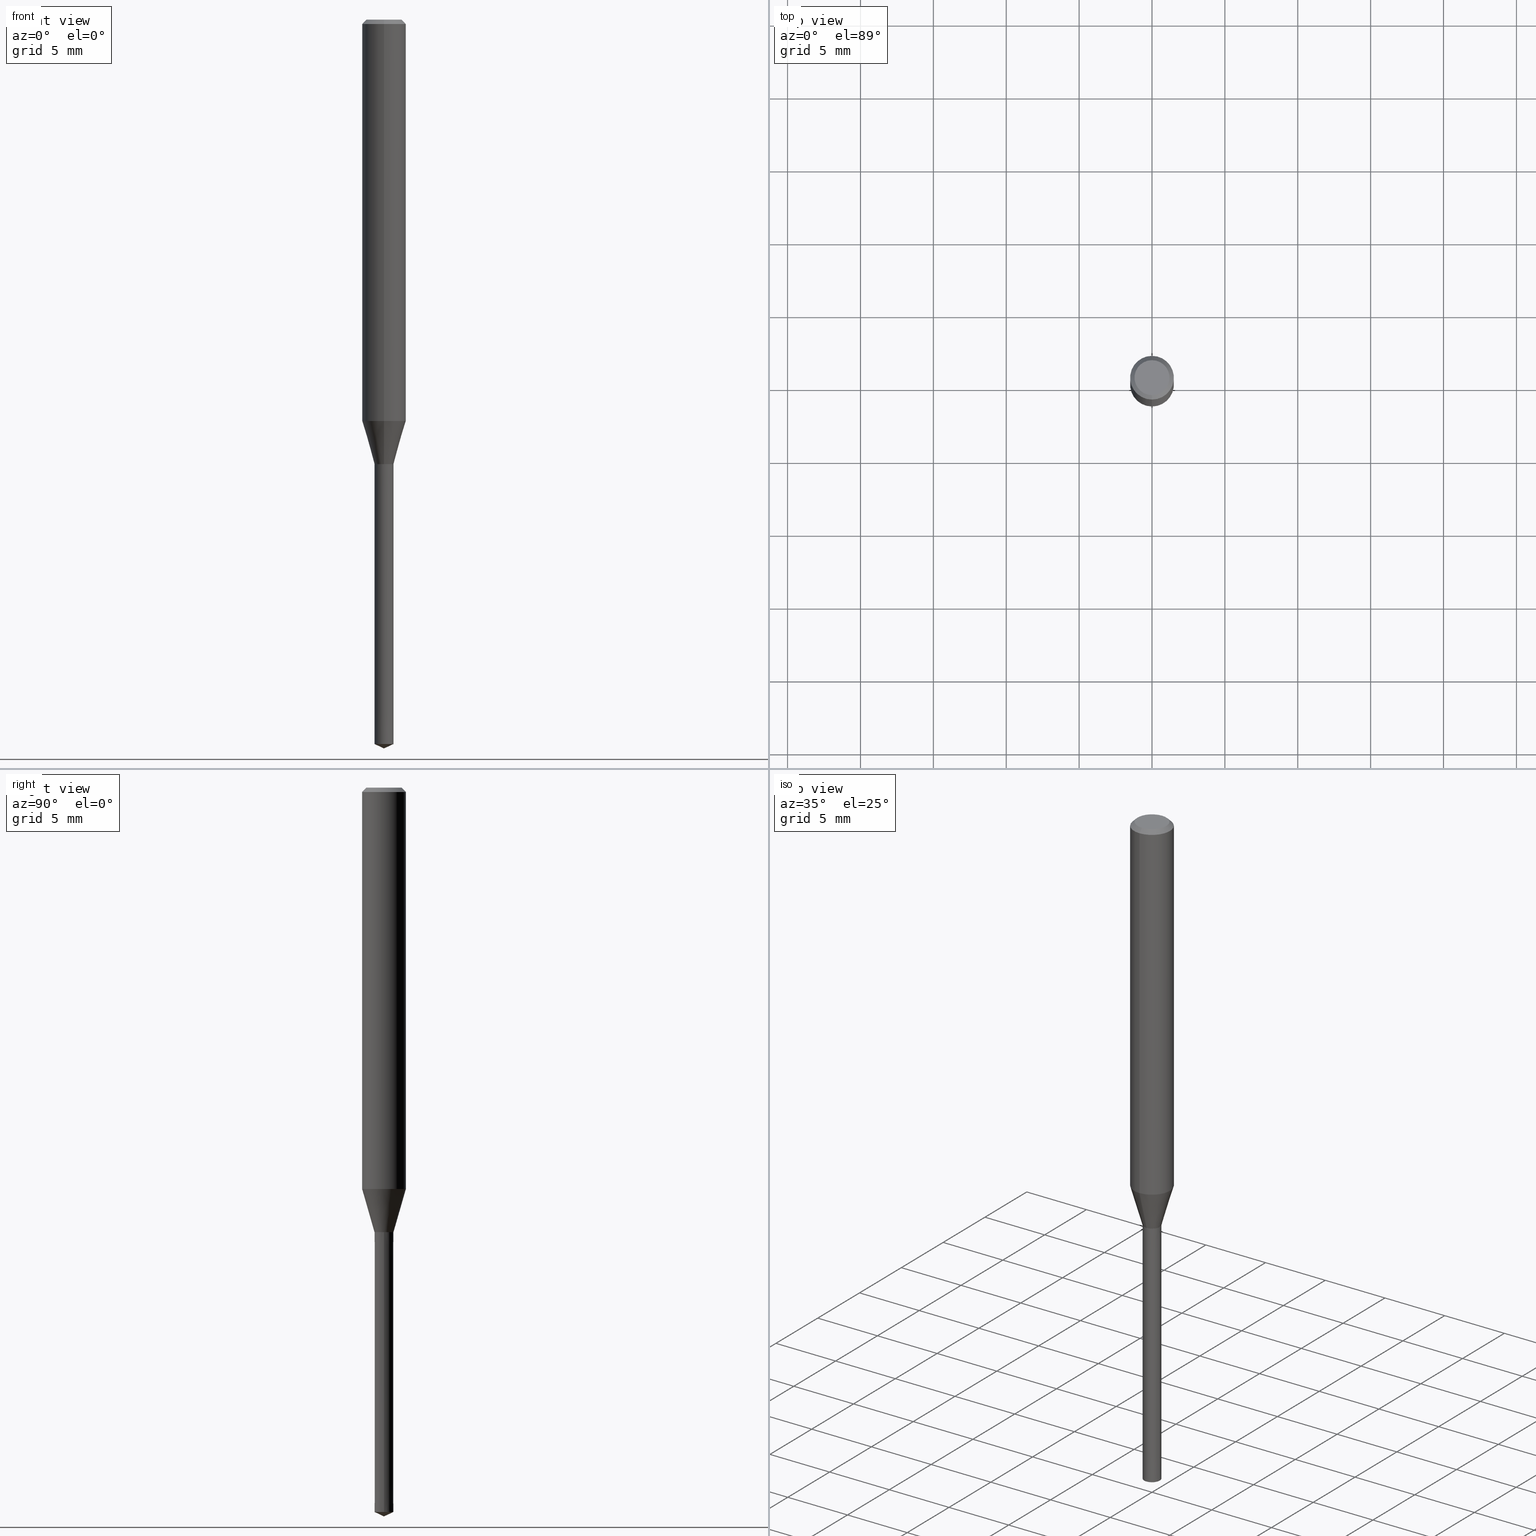
[diagram: canonical four-view strip — front | top / right | iso, engineering-drawing reading convention]
A machine part, canonical four-view strip (front | top / right | iso — engineering-drawing reading convention). The complete STEP part file that produces these views, byte-faithful:
ISO-10303-21;
HEADER;
FILE_DESCRIPTION(('no description'),'unknown implementation level');
FILE_NAME('UTDLX2130-195-Huellk.stp','  ',('CIMSOURCE GmbH'),('CADClick - KiM GmbH - www.kimweb.de'),'unknown preprocess','ACIS','unknown authorization');
FILE_SCHEMA(('automotive_design'));
ENDSEC;
DATA;
#1=MECHANICAL_DESIGN_GEOMETRIC_PRESENTATION_REPRESENTATION(' ',(#14,#15,#16,#17,#18,#19,#20,#21,#22,#23,#24,#25,#26,#27,#28,#29,#30,#31,#32,#33,#34,#35,#36,#37,#38,#39,#40,#41,#42,#43,#44,#45,#46,#47,#48,#49,#50,#51,#52,#53,#54,#55,#56,#57,#58,#59,#60,#61,#62,#63,#64,#65,#66,#67,#68,#69,#70,#71),#10);
#2=PRODUCT_DEFINITION_CONTEXT('',#72,'design');
#3=APPLICATION_PROTOCOL_DEFINITION('INTERNATIONAL STANDARD','automotive_design',1994,#72);
#4=PRODUCT_CATEGORY_RELATIONSHIP('NONE','NONE',#73,#74);
#5=SHAPE_DEFINITION_REPRESENTATION(#75,#76);
#6=PRODUCT_DEFINITION_CONTEXT('',#77,'design');
#7=APPLICATION_PROTOCOL_DEFINITION('INTERNATIONAL STANDARD','automotive_design',1994,#77);
#8=PRODUCT_CATEGORY_RELATIONSHIP('NONE','NONE',#78,#79);
#9=SHAPE_DEFINITION_REPRESENTATION(#80,#81);
#10= (GEOMETRIC_REPRESENTATION_CONTEXT(3)GLOBAL_UNCERTAINTY_ASSIGNED_CONTEXT((#84))GLOBAL_UNIT_ASSIGNED_CONTEXT((#86,#87,#88))REPRESENTATION_CONTEXT('NONE','WORKSPACE'));
#14=STYLED_ITEM('',(#90),#91);
#15=STYLED_ITEM('',(#92),#93);
#16=STYLED_ITEM('',(#94),#95);
#17=STYLED_ITEM('',(#96),#97);
#18=STYLED_ITEM('',(#98),#99);
#19=STYLED_ITEM('',(#100),#101);
#20=STYLED_ITEM('',(#102),#103);
#21=STYLED_ITEM('',(#104),#105);
#22=STYLED_ITEM('',(#106),#107);
#23=STYLED_ITEM('',(#108),#109);
#24=STYLED_ITEM('',(#110),#111);
#25=STYLED_ITEM('',(#112),#113);
#26=STYLED_ITEM('',(#114),#115);
#27=STYLED_ITEM('',(#116),#117);
#28=STYLED_ITEM('',(#118),#119);
#29=STYLED_ITEM('',(#120),#121);
#30=STYLED_ITEM('',(#122),#123);
#31=STYLED_ITEM('',(#124),#125);
#32=STYLED_ITEM('',(#126),#127);
#33=STYLED_ITEM('',(#128),#129);
#34=STYLED_ITEM('',(#130),#131);
#35=STYLED_ITEM('',(#132),#133);
#36=STYLED_ITEM('',(#134),#135);
#37=STYLED_ITEM('',(#136),#137);
#38=STYLED_ITEM('',(#138),#139);
#39=STYLED_ITEM('',(#140),#141);
#40=STYLED_ITEM('',(#142),#143);
#41=STYLED_ITEM('',(#144),#145);
#42=STYLED_ITEM('',(#146),#147);
#43=STYLED_ITEM('',(#148),#149);
#44=STYLED_ITEM('',(#150),#151);
#45=STYLED_ITEM('',(#152),#153);
#46=STYLED_ITEM('',(#154),#155);
#47=STYLED_ITEM('',(#156),#157);
#48=STYLED_ITEM('',(#158),#159);
#49=STYLED_ITEM('',(#160),#161);
#50=STYLED_ITEM('',(#162),#163);
#51=STYLED_ITEM('',(#164),#165);
#52=STYLED_ITEM('',(#166),#167);
#53=STYLED_ITEM('',(#168),#169);
#54=STYLED_ITEM('',(#170),#171);
#55=STYLED_ITEM('',(#172),#173);
#56=STYLED_ITEM('',(#174),#175);
#57=STYLED_ITEM('',(#176),#177);
#58=STYLED_ITEM('',(#178),#179);
#59=STYLED_ITEM('',(#180),#181);
#60=STYLED_ITEM('',(#182),#183);
#61=STYLED_ITEM('',(#184),#185);
#62=STYLED_ITEM('',(#186),#187);
#63=STYLED_ITEM('',(#188),#189);
#64=STYLED_ITEM('',(#190),#191);
#65=STYLED_ITEM('',(#192),#193);
#66=STYLED_ITEM('',(#194),#195);
#67=STYLED_ITEM('',(#196),#197);
#68=STYLED_ITEM('',(#198),#199);
#69=STYLED_ITEM('',(#200),#201);
#70=STYLED_ITEM('',(#202),#203);
#71=STYLED_ITEM('',(#204),#205);
#72=APPLICATION_CONTEXT(' ');
#73=PRODUCT_CATEGORY('part','NONE');
#74=PRODUCT_RELATED_PRODUCT_CATEGORY('detail',' ',(#206));
#75=PRODUCT_DEFINITION_SHAPE('NONE','NONE',#207);
#76=ADVANCED_BREP_SHAPE_REPRESENTATION('1',(#97,#208),#10);
#77=APPLICATION_CONTEXT(' ');
#78=PRODUCT_CATEGORY('part','NONE');
#79=PRODUCT_RELATED_PRODUCT_CATEGORY('detail',' ',(#209));
#80=PRODUCT_DEFINITION_SHAPE('NONE','NONE',#210);
#81=ADVANCED_BREP_SHAPE_REPRESENTATION('2',(#135,#211),#10);
#84=UNCERTAINTY_MEASURE_WITH_UNIT(LENGTH_MEASURE(1.0E-006),#86,'','');
#86= (CONVERSION_BASED_UNIT('MILLIMETRE',#214)LENGTH_UNIT()NAMED_UNIT(#217));
#87= (NAMED_UNIT(#219)PLANE_ANGLE_UNIT()SI_UNIT($,.RADIAN.));
#88= (NAMED_UNIT(#219)SOLID_ANGLE_UNIT()SI_UNIT($,.STERADIAN.));
#90=PRESENTATION_STYLE_ASSIGNMENT((#225));
#91=VERTEX_POINT('',#226);
#92=PRESENTATION_STYLE_ASSIGNMENT((#227));
#93=ADVANCED_FACE('',(#228),#229,.T.);
#94=PRESENTATION_STYLE_ASSIGNMENT((#230));
#95=EDGE_CURVE('',#91,#141,#231,.T.);
#96=PRESENTATION_STYLE_ASSIGNMENT((#232));
#97=MANIFOLD_SOLID_BREP('1',#233);
#98=PRESENTATION_STYLE_ASSIGNMENT((#234));
#99=ADVANCED_FACE('',(#235),#236,.T.);
#100=PRESENTATION_STYLE_ASSIGNMENT((#237));
#101=VERTEX_POINT('',#238);
#102=PRESENTATION_STYLE_ASSIGNMENT((#239));
#103=VERTEX_POINT('',#240);
#104=PRESENTATION_STYLE_ASSIGNMENT((#241));
#105=ADVANCED_FACE('',(#242),#243,.T.);
#106=PRESENTATION_STYLE_ASSIGNMENT((#244));
#107=EDGE_CURVE('',#173,#103,#245,.T.);
#108=PRESENTATION_STYLE_ASSIGNMENT((#246));
#109=VERTEX_POINT('',#247);
#110=PRESENTATION_STYLE_ASSIGNMENT((#248));
#111=EDGE_CURVE('',#143,#115,#249,.T.);
#112=PRESENTATION_STYLE_ASSIGNMENT((#250));
#113=EDGE_CURVE('',#109,#159,#251,.T.);
#114=PRESENTATION_STYLE_ASSIGNMENT((#252));
#115=VERTEX_POINT('',#253);
#116=PRESENTATION_STYLE_ASSIGNMENT((#254));
#117=ADVANCED_FACE('',(#255),#256,.T.);
#118=PRESENTATION_STYLE_ASSIGNMENT((#257));
#119=ADVANCED_FACE('',(#258),#259,.T.);
#120=PRESENTATION_STYLE_ASSIGNMENT((#260));
#121=EDGE_CURVE('',#183,#101,#261,.T.);
#122=PRESENTATION_STYLE_ASSIGNMENT((#262));
#123=VERTEX_POINT('',#263);
#124=PRESENTATION_STYLE_ASSIGNMENT((#264));
#125=ADVANCED_FACE('',(#265),#266,.T.);
#126=PRESENTATION_STYLE_ASSIGNMENT((#267));
#127=EDGE_CURVE('',#115,#137,#268,.T.);
#128=PRESENTATION_STYLE_ASSIGNMENT((#269));
#129=EDGE_CURVE('',#195,#183,#270,.T.);
#130=PRESENTATION_STYLE_ASSIGNMENT((#271));
#131=EDGE_CURVE('',#195,#179,#272,.T.);
#132=PRESENTATION_STYLE_ASSIGNMENT((#273));
#133=ADVANCED_FACE('',(#274),#275,.T.);
#134=PRESENTATION_STYLE_ASSIGNMENT((#276));
#135=MANIFOLD_SOLID_BREP('2',#277);
#136=PRESENTATION_STYLE_ASSIGNMENT((#278));
#137=VERTEX_POINT('',#279);
#138=PRESENTATION_STYLE_ASSIGNMENT((#280));
#139=EDGE_CURVE('',#103,#101,#281,.T.);
#140=PRESENTATION_STYLE_ASSIGNMENT((#282));
#141=VERTEX_POINT('',#283);
#142=PRESENTATION_STYLE_ASSIGNMENT((#284));
#143=VERTEX_POINT('',#285);
#144=PRESENTATION_STYLE_ASSIGNMENT((#286));
#145=VERTEX_POINT('',#287);
#146=PRESENTATION_STYLE_ASSIGNMENT((#288));
#147=ADVANCED_FACE('',(#289),#290,.T.);
#148=PRESENTATION_STYLE_ASSIGNMENT((#291));
#149=EDGE_CURVE('',#101,#179,#292,.T.);
#150=PRESENTATION_STYLE_ASSIGNMENT((#293));
#151=EDGE_CURVE('',#109,#115,#294,.T.);
#152=PRESENTATION_STYLE_ASSIGNMENT((#295));
#153=EDGE_CURVE('',#91,#195,#296,.T.);
#154=PRESENTATION_STYLE_ASSIGNMENT((#297));
#155=EDGE_CURVE('',#123,#103,#298,.T.);
#156=PRESENTATION_STYLE_ASSIGNMENT((#299));
#157=EDGE_CURVE('',#123,#145,#300,.T.);
#158=PRESENTATION_STYLE_ASSIGNMENT((#301));
#159=VERTEX_POINT('',#302);
#160=PRESENTATION_STYLE_ASSIGNMENT((#303));
#161=EDGE_CURVE('',#179,#195,#304,.T.);
#162=PRESENTATION_STYLE_ASSIGNMENT((#305));
#163=EDGE_CURVE('',#103,#173,#306,.T.);
#164=PRESENTATION_STYLE_ASSIGNMENT((#307));
#165=ADVANCED_FACE('',(#308),#309,.T.);
#166=PRESENTATION_STYLE_ASSIGNMENT((#310));
#167=ADVANCED_FACE('',(#311),#312,.T.);
#168=PRESENTATION_STYLE_ASSIGNMENT((#313));
#169=EDGE_CURVE('',#159,#109,#314,.T.);
#170=PRESENTATION_STYLE_ASSIGNMENT((#315));
#171=EDGE_CURVE('',#141,#91,#316,.T.);
#172=PRESENTATION_STYLE_ASSIGNMENT((#317));
#173=VERTEX_POINT('',#318);
#174=PRESENTATION_STYLE_ASSIGNMENT((#319));
#175=EDGE_CURVE('',#183,#173,#320,.T.);
#176=PRESENTATION_STYLE_ASSIGNMENT((#321));
#177=EDGE_CURVE('',#115,#143,#322,.T.);
#178=PRESENTATION_STYLE_ASSIGNMENT((#323));
#179=VERTEX_POINT('',#324);
#180=PRESENTATION_STYLE_ASSIGNMENT((#325));
#181=ADVANCED_FACE('',(#326),#327,.T.);
#182=PRESENTATION_STYLE_ASSIGNMENT((#328));
#183=VERTEX_POINT('',#329);
#184=PRESENTATION_STYLE_ASSIGNMENT((#330));
#185=ADVANCED_FACE('',(#331),#332,.T.);
#186=PRESENTATION_STYLE_ASSIGNMENT((#333));
#187=ADVANCED_FACE('',(#334),#335,.T.);
#188=PRESENTATION_STYLE_ASSIGNMENT((#336));
#189=EDGE_CURVE('',#137,#143,#337,.T.);
#190=PRESENTATION_STYLE_ASSIGNMENT((#338));
#191=EDGE_CURVE('',#179,#141,#339,.T.);
#192=PRESENTATION_STYLE_ASSIGNMENT((#340));
#193=ADVANCED_FACE('',(#341),#342,.T.);
#194=PRESENTATION_STYLE_ASSIGNMENT((#343));
#195=VERTEX_POINT('',#344);
#196=PRESENTATION_STYLE_ASSIGNMENT((#345));
#197=EDGE_CURVE('',#101,#183,#346,.T.);
#198=PRESENTATION_STYLE_ASSIGNMENT((#347));
#199=EDGE_CURVE('',#145,#123,#348,.T.);
#200=PRESENTATION_STYLE_ASSIGNMENT((#349));
#201=EDGE_CURVE('',#143,#159,#350,.T.);
#202=PRESENTATION_STYLE_ASSIGNMENT((#351));
#203=EDGE_CURVE('',#173,#145,#352,.T.);
#204=PRESENTATION_STYLE_ASSIGNMENT((#353));
#205=ADVANCED_FACE('',(#354),#355,.T.);
#206=PRODUCT('1','1','PART-1-DESC',(#356));
#207=PRODUCT_DEFINITION('NONE','NONE',#357,#2);
#208=AXIS2_PLACEMENT_3D('',#358,#359,#360);
#209=PRODUCT('2','2','PART-2-DESC',(#361));
#210=PRODUCT_DEFINITION('NONE','NONE',#362,#6);
#211=AXIS2_PLACEMENT_3D('',#363,#364,#365);
#214=LENGTH_MEASURE_WITH_UNIT(LENGTH_MEASURE(1.0),#366);
#217=DIMENSIONAL_EXPONENTS(1.0,0.0,0.0,0.0,0.0,0.0,0.0);
#219=DIMENSIONAL_EXPONENTS(0.0,0.0,0.0,0.0,0.0,0.0,0.0);
#225=POINT_STYLE(' ',#367,POSITIVE_LENGTH_MEASURE(1.0E-006),#368);
#226=CARTESIAN_POINT('',(7.96606433161456E-017,-0.6505,-30.5));
#227=SURFACE_STYLE_USAGE(.BOTH.,#369);
#228=FACE_OUTER_BOUND('',#370,.T.);
#229=PLANE('',#371);
#230=CURVE_STYLE('',#372,POSITIVE_LENGTH_MEASURE(1.0E-006),#373);
#231=CIRCLE('',#374,0.6505);
#232=SURFACE_STYLE_USAGE(.BOTH.,#375);
#233=CLOSED_SHELL('',(#167,#165,#193,#185,#93,#105,#119,#99,#205,#133));
#234=SURFACE_STYLE_USAGE(.BOTH.,#376);
#235=FACE_OUTER_BOUND('',#377,.T.);
#236=CONICAL_SURFACE('',#378,1.075,0.279357145312634);
#237=POINT_STYLE(' ',#379,POSITIVE_LENGTH_MEASURE(1.0E-006),#380);
#238=CARTESIAN_POINT('',(0.0,1.5,-27.536));
#239=POINT_STYLE(' ',#381,POSITIVE_LENGTH_MEASURE(1.0E-006),#382);
#240=CARTESIAN_POINT('',(0.0,1.5,-0.300000000000001));
#241=SURFACE_STYLE_USAGE(.BOTH.,#383);
#242=FACE_OUTER_BOUND('',#384,.T.);
#243=CONICAL_SURFACE('',#385,1.35,0.785398163397447);
#244=CURVE_STYLE('',#386,POSITIVE_LENGTH_MEASURE(1.0E-006),#387);
#245=CIRCLE('',#388,1.5);
#246=POINT_STYLE(' ',#389,POSITIVE_LENGTH_MEASURE(1.0E-006),#390);
#247=CARTESIAN_POINT('',(-0.651,0.0,-30.5));
#248=CURVE_STYLE('',#391,POSITIVE_LENGTH_MEASURE(1.0E-006),#392);
#249=CIRCLE('',#393,0.65);
#250=CURVE_STYLE('',#394,POSITIVE_LENGTH_MEASURE(1.0E-006),#395);
#251=CIRCLE('',#396,0.651);
#252=POINT_STYLE(' ',#397,POSITIVE_LENGTH_MEASURE(1.0E-006),#398);
#253=CARTESIAN_POINT('',(-0.65,0.0,-49.69690002));
#254=SURFACE_STYLE_USAGE(.BOTH.,#399);
#255=FACE_OUTER_BOUND('',#400,.T.);
#256=PLANE('',#401);
#257=SURFACE_STYLE_USAGE(.BOTH.,#402);
#258=FACE_OUTER_BOUND('',#403,.T.);
#259=CYLINDRICAL_SURFACE('',#404,1.5);
#260=CURVE_STYLE('',#405,POSITIVE_LENGTH_MEASURE(1.0E-006),#406);
#261=CIRCLE('',#407,1.5);
#262=POINT_STYLE(' ',#408,POSITIVE_LENGTH_MEASURE(1.0E-006),#409);
#263=CARTESIAN_POINT('',(0.0,1.2,0.0));
#264=SURFACE_STYLE_USAGE(.BOTH.,#410);
#265=FACE_OUTER_BOUND('',#411,.T.);
#266=CONICAL_SURFACE('',#412,0.6505,5.20917438781079E-005);
#267=CURVE_STYLE('',#413,POSITIVE_LENGTH_MEASURE(1.0E-006),#414);
#268=LINE('',#415,#416);
#269=CURVE_STYLE('',#417,POSITIVE_LENGTH_MEASURE(1.0E-006),#418);
#270=LINE('',#419,#420);
#271=CURVE_STYLE('',#421,POSITIVE_LENGTH_MEASURE(1.0E-006),#422);
#272=CIRCLE('',#423,0.65);
#273=SURFACE_STYLE_USAGE(.BOTH.,#424);
#274=FACE_OUTER_BOUND('',#425,.T.);
#275=PLANE('',#426);
#276=SURFACE_STYLE_USAGE(.BOTH.,#427);
#277=CLOSED_SHELL('',(#187,#147,#117,#125,#181));
#278=POINT_STYLE(' ',#428,POSITIVE_LENGTH_MEASURE(1.0E-006),#429);
#279=CARTESIAN_POINT('',(0.0,0.0,-50.0));
#280=CURVE_STYLE('',#430,POSITIVE_LENGTH_MEASURE(1.0E-006),#431);
#281=LINE('',#432,#433);
#282=POINT_STYLE(' ',#434,POSITIVE_LENGTH_MEASURE(1.0E-006),#435);
#283=CARTESIAN_POINT('',(0.0,0.6505,-30.5));
#284=POINT_STYLE(' ',#436,POSITIVE_LENGTH_MEASURE(1.0E-006),#437);
#285=CARTESIAN_POINT('',(0.65,7.95994129984545E-017,-49.69690002));
#286=POINT_STYLE(' ',#438,POSITIVE_LENGTH_MEASURE(1.0E-006),#439);
#287=CARTESIAN_POINT('',(1.46952762458685E-016,-1.2,0.0));
#288=SURFACE_STYLE_USAGE(.BOTH.,#440);
#289=FACE_OUTER_BOUND('',#441,.T.);
#290=CONICAL_SURFACE('',#442,0.6505,5.20917438781079E-005);
#291=CURVE_STYLE('',#443,POSITIVE_LENGTH_MEASURE(1.0E-006),#444);
#292=LINE('',#445,#446);
#293=CURVE_STYLE('',#447,POSITIVE_LENGTH_MEASURE(1.0E-006),#448);
#294=LINE('',#449,#450);
#295=CURVE_STYLE('',#451,POSITIVE_LENGTH_MEASURE(1.0E-006),#452);
#296=LINE('',#453,#454);
#297=CURVE_STYLE('',#455,POSITIVE_LENGTH_MEASURE(1.0E-006),#456);
#298=LINE('',#457,#458);
#299=CURVE_STYLE('',#459,POSITIVE_LENGTH_MEASURE(1.0E-006),#460);
#300=CIRCLE('',#461,1.2);
#301=POINT_STYLE(' ',#462,POSITIVE_LENGTH_MEASURE(1.0E-006),#463);
#302=CARTESIAN_POINT('',(0.651,7.97218736338368E-017,-30.5));
#303=CURVE_STYLE('',#464,POSITIVE_LENGTH_MEASURE(1.0E-006),#465);
#304=CIRCLE('',#466,0.65);
#305=CURVE_STYLE('',#467,POSITIVE_LENGTH_MEASURE(1.0E-006),#468);
#306=CIRCLE('',#469,1.5);
#307=SURFACE_STYLE_USAGE(.BOTH.,#470);
#308=FACE_OUTER_BOUND('',#471,.T.);
#309=CONICAL_SURFACE('',#472,1.075,0.279357145312634);
#310=SURFACE_STYLE_USAGE(.BOTH.,#473);
#311=FACE_OUTER_BOUND('',#474,.T.);
#312=CONICAL_SURFACE('',#475,0.65025,0.52359877559836);
#313=CURVE_STYLE('',#476,POSITIVE_LENGTH_MEASURE(1.0E-006),#477);
#314=CIRCLE('',#478,0.651);
#315=CURVE_STYLE('',#479,POSITIVE_LENGTH_MEASURE(1.0E-006),#480);
#316=CIRCLE('',#481,0.6505);
#317=POINT_STYLE(' ',#482,POSITIVE_LENGTH_MEASURE(1.0E-006),#483);
#318=CARTESIAN_POINT('',(1.83690953073357E-016,-1.5,-0.300000000000001));
#319=CURVE_STYLE('',#484,POSITIVE_LENGTH_MEASURE(1.0E-006),#485);
#320=LINE('',#486,#487);
#321=CURVE_STYLE('',#488,POSITIVE_LENGTH_MEASURE(1.0E-006),#489);
#322=CIRCLE('',#490,0.65);
#323=POINT_STYLE(' ',#491,POSITIVE_LENGTH_MEASURE(1.0E-006),#492);
#324=CARTESIAN_POINT('',(0.0,0.65,-30.4991339745962));
#325=SURFACE_STYLE_USAGE(.BOTH.,#493);
#326=FACE_OUTER_BOUND('',#494,.T.);
#327=CONICAL_SURFACE('',#495,0.325,1.13446401101716);
#328=POINT_STYLE(' ',#496,POSITIVE_LENGTH_MEASURE(1.0E-006),#497);
#329=CARTESIAN_POINT('',(1.83690953073357E-016,-1.5,-27.536));
#330=SURFACE_STYLE_USAGE(.BOTH.,#498);
#331=FACE_OUTER_BOUND('',#499,.T.);
#332=CONICAL_SURFACE('',#500,1.35,0.785398163397447);
#333=SURFACE_STYLE_USAGE(.BOTH.,#501);
#334=FACE_OUTER_BOUND('',#502,.T.);
#335=CONICAL_SURFACE('',#503,0.325,1.13446401101716);
#336=CURVE_STYLE('',#504,POSITIVE_LENGTH_MEASURE(1.0E-006),#505);
#337=LINE('',#506,#507);
#338=CURVE_STYLE('',#508,POSITIVE_LENGTH_MEASURE(1.0E-006),#509);
#339=LINE('',#510,#511);
#340=SURFACE_STYLE_USAGE(.BOTH.,#512);
#341=FACE_OUTER_BOUND('',#513,.T.);
#342=CYLINDRICAL_SURFACE('',#514,1.5);
#343=POINT_STYLE(' ',#515,POSITIVE_LENGTH_MEASURE(1.0E-006),#516);
#344=CARTESIAN_POINT('',(7.95994129984545E-017,-0.65,-30.4991339745962));
#345=CURVE_STYLE('',#517,POSITIVE_LENGTH_MEASURE(1.0E-006),#518);
#346=CIRCLE('',#519,1.5);
#347=CURVE_STYLE('',#520,POSITIVE_LENGTH_MEASURE(1.0E-006),#521);
#348=CIRCLE('',#522,1.2);
#349=CURVE_STYLE('',#523,POSITIVE_LENGTH_MEASURE(1.0E-006),#524);
#350=LINE('',#525,#526);
#351=CURVE_STYLE('',#527,POSITIVE_LENGTH_MEASURE(1.0E-006),#528);
#352=LINE('',#529,#530);
#353=SURFACE_STYLE_USAGE(.BOTH.,#531);
#354=FACE_OUTER_BOUND('',#532,.T.);
#355=CONICAL_SURFACE('',#533,0.65025,0.52359877559836);
#356=PRODUCT_CONTEXT('',#72,'mechanical');
#357=PRODUCT_DEFINITION_FORMATION_WITH_SPECIFIED_SOURCE(' ','NONE',#206,.NOT_KNOWN.);
#358=CARTESIAN_POINT('',(0.0,0.0,0.0));
#359=DIRECTION('',(0.0,0.0,1.0));
#360=DIRECTION('',(1.0,0.0,0.0));
#361=PRODUCT_CONTEXT('',#77,'mechanical');
#362=PRODUCT_DEFINITION_FORMATION_WITH_SPECIFIED_SOURCE(' ','NONE',#209,.NOT_KNOWN.);
#363=CARTESIAN_POINT('',(0.0,0.0,0.0));
#364=DIRECTION('',(0.0,0.0,1.0));
#365=DIRECTION('',(1.0,0.0,0.0));
#366= (NAMED_UNIT(#217)LENGTH_UNIT()SI_UNIT(.MILLI.,.METRE.));
#367=PRE_DEFINED_MARKER('');
#368=COLOUR_RGB('',0.498039215803146,0.498039215803146,0.498039215803146);
#369=SURFACE_SIDE_STYLE('',(#535));
#370=EDGE_LOOP('',(#536,#537));
#371=AXIS2_PLACEMENT_3D('',#538,#539,#540);
#372=DRAUGHTING_PRE_DEFINED_CURVE_FONT('continuous');
#373=COLOUR_RGB('',0.498039215803146,0.498039215803146,0.498039215803146);
#374=AXIS2_PLACEMENT_3D('',#541,#542,#543);
#375=SURFACE_SIDE_STYLE('',(#544));
#376=SURFACE_SIDE_STYLE('',(#545));
#377=EDGE_LOOP('',(#546,#547,#548,#549));
#378=AXIS2_PLACEMENT_3D('',#550,#551,#552);
#379=PRE_DEFINED_MARKER('');
#380=COLOUR_RGB('',0.498039215803146,0.498039215803146,0.498039215803146);
#381=PRE_DEFINED_MARKER('');
#382=COLOUR_RGB('',0.498039215803146,0.498039215803146,0.498039215803146);
#383=SURFACE_SIDE_STYLE('',(#553));
#384=EDGE_LOOP('',(#554,#555,#556,#557));
#385=AXIS2_PLACEMENT_3D('',#558,#559,#560);
#386=DRAUGHTING_PRE_DEFINED_CURVE_FONT('continuous');
#387=COLOUR_RGB('',0.498039215803146,0.498039215803146,0.498039215803146);
#388=AXIS2_PLACEMENT_3D('',#561,#562,#563);
#389=PRE_DEFINED_MARKER('');
#390=COLOUR_RGB('',0.800000011920929,0.800000011920929,0.800000011920929);
#391=DRAUGHTING_PRE_DEFINED_CURVE_FONT('continuous');
#392=COLOUR_RGB('',0.800000011920929,0.800000011920929,0.800000011920929);
#393=AXIS2_PLACEMENT_3D('',#564,#565,#566);
#394=DRAUGHTING_PRE_DEFINED_CURVE_FONT('continuous');
#395=COLOUR_RGB('',0.800000011920929,0.800000011920929,0.800000011920929);
#396=AXIS2_PLACEMENT_3D('',#567,#568,#569);
#397=PRE_DEFINED_MARKER('');
#398=COLOUR_RGB('',0.800000011920929,0.800000011920929,0.800000011920929);
#399=SURFACE_SIDE_STYLE('',(#570));
#400=EDGE_LOOP('',(#571,#572));
#401=AXIS2_PLACEMENT_3D('',#573,#574,#575);
#402=SURFACE_SIDE_STYLE('',(#576));
#403=EDGE_LOOP('',(#577,#578,#579,#580));
#404=AXIS2_PLACEMENT_3D('',#581,#582,#583);
#405=DRAUGHTING_PRE_DEFINED_CURVE_FONT('continuous');
#406=COLOUR_RGB('',0.498039215803146,0.498039215803146,0.498039215803146);
#407=AXIS2_PLACEMENT_3D('',#584,#585,#586);
#408=PRE_DEFINED_MARKER('');
#409=COLOUR_RGB('',0.498039215803146,0.498039215803146,0.498039215803146);
#410=SURFACE_SIDE_STYLE('',(#587));
#411=EDGE_LOOP('',(#588,#589,#590,#591));
#412=AXIS2_PLACEMENT_3D('',#592,#593,#594);
#413=DRAUGHTING_PRE_DEFINED_CURVE_FONT('continuous');
#414=COLOUR_RGB('',0.800000011920929,0.800000011920929,0.800000011920929);
#415=CARTESIAN_POINT('',(-0.325,-3.97997064992273E-017,-49.84845001));
#416=VECTOR('',#595,1.0);
#417=DRAUGHTING_PRE_DEFINED_CURVE_FONT('continuous');
#418=COLOUR_RGB('',0.498039215803146,0.498039215803146,0.498039215803146);
#419=CARTESIAN_POINT('',(1.31645183035906E-016,-1.075,-29.0175669872981));
#420=VECTOR('',#596,1.0);
#421=DRAUGHTING_PRE_DEFINED_CURVE_FONT('continuous');
#422=COLOUR_RGB('',0.498039215803146,0.498039215803146,0.498039215803146);
#423=AXIS2_PLACEMENT_3D('',#597,#598,#599);
#424=SURFACE_SIDE_STYLE('',(#600));
#425=EDGE_LOOP('',(#601,#602));
#426=AXIS2_PLACEMENT_3D('',#603,#604,#605);
#427=SURFACE_SIDE_STYLE('',(#606));
#428=PRE_DEFINED_MARKER('');
#429=COLOUR_RGB('',0.800000011920929,0.800000011920929,0.800000011920929);
#430=DRAUGHTING_PRE_DEFINED_CURVE_FONT('continuous');
#431=COLOUR_RGB('',0.498039215803146,0.498039215803146,0.498039215803146);
#432=CARTESIAN_POINT('',(-1.83690953073357E-016,1.5,-13.918));
#433=VECTOR('',#607,1.0);
#434=PRE_DEFINED_MARKER('');
#435=COLOUR_RGB('',0.498039215803146,0.498039215803146,0.498039215803146);
#436=PRE_DEFINED_MARKER('');
#437=COLOUR_RGB('',0.800000011920929,0.800000011920929,0.800000011920929);
#438=PRE_DEFINED_MARKER('');
#439=COLOUR_RGB('',0.498039215803146,0.498039215803146,0.498039215803146);
#440=SURFACE_SIDE_STYLE('',(#608));
#441=EDGE_LOOP('',(#609,#610,#611,#612));
#442=AXIS2_PLACEMENT_3D('',#613,#614,#615);
#443=DRAUGHTING_PRE_DEFINED_CURVE_FONT('continuous');
#444=COLOUR_RGB('',0.498039215803146,0.498039215803146,0.498039215803146);
#445=CARTESIAN_POINT('',(-1.31645183035906E-016,1.075,-29.0175669872981));
#446=VECTOR('',#616,1.0);
#447=DRAUGHTING_PRE_DEFINED_CURVE_FONT('continuous');
#448=COLOUR_RGB('',0.800000011920929,0.800000011920929,0.800000011920929);
#449=CARTESIAN_POINT('',(-0.6505,-7.96606433161456E-017,-40.09845001));
#450=VECTOR('',#617,1.0);
#451=DRAUGHTING_PRE_DEFINED_CURVE_FONT('continuous');
#452=COLOUR_RGB('',0.498039215803146,0.498039215803146,0.498039215803146);
#453=CARTESIAN_POINT('',(7.96300281573001E-017,-0.65025,-30.4995669872981));
#454=VECTOR('',#618,1.0);
#455=DRAUGHTING_PRE_DEFINED_CURVE_FONT('continuous');
#456=COLOUR_RGB('',0.498039215803146,0.498039215803146,0.498039215803146);
#457=CARTESIAN_POINT('',(-1.65321857766021E-016,1.35,-0.149999999999999));
#458=VECTOR('',#619,1.0);
#459=DRAUGHTING_PRE_DEFINED_CURVE_FONT('continuous');
#460=COLOUR_RGB('',0.498039215803146,0.498039215803146,0.498039215803146);
#461=AXIS2_PLACEMENT_3D('',#620,#621,#622);
#462=PRE_DEFINED_MARKER('');
#463=COLOUR_RGB('',0.800000011920929,0.800000011920929,0.800000011920929);
#464=DRAUGHTING_PRE_DEFINED_CURVE_FONT('continuous');
#465=COLOUR_RGB('',0.498039215803146,0.498039215803146,0.498039215803146);
#466=AXIS2_PLACEMENT_3D('',#623,#624,#625);
#467=DRAUGHTING_PRE_DEFINED_CURVE_FONT('continuous');
#468=COLOUR_RGB('',0.498039215803146,0.498039215803146,0.498039215803146);
#469=AXIS2_PLACEMENT_3D('',#626,#627,#628);
#470=SURFACE_SIDE_STYLE('',(#629));
#471=EDGE_LOOP('',(#630,#631,#632,#633));
#472=AXIS2_PLACEMENT_3D('',#634,#635,#636);
#473=SURFACE_SIDE_STYLE('',(#637));
#474=EDGE_LOOP('',(#638,#639,#640,#641));
#475=AXIS2_PLACEMENT_3D('',#642,#643,#644);
#476=DRAUGHTING_PRE_DEFINED_CURVE_FONT('continuous');
#477=COLOUR_RGB('',0.800000011920929,0.800000011920929,0.800000011920929);
#478=AXIS2_PLACEMENT_3D('',#645,#646,#647);
#479=DRAUGHTING_PRE_DEFINED_CURVE_FONT('continuous');
#480=COLOUR_RGB('',0.498039215803146,0.498039215803146,0.498039215803146);
#481=AXIS2_PLACEMENT_3D('',#648,#649,#650);
#482=PRE_DEFINED_MARKER('');
#483=COLOUR_RGB('',0.498039215803146,0.498039215803146,0.498039215803146);
#484=DRAUGHTING_PRE_DEFINED_CURVE_FONT('continuous');
#485=COLOUR_RGB('',0.498039215803146,0.498039215803146,0.498039215803146);
#486=CARTESIAN_POINT('',(1.83690953073357E-016,-1.5,-13.918));
#487=VECTOR('',#651,1.0);
#488=DRAUGHTING_PRE_DEFINED_CURVE_FONT('continuous');
#489=COLOUR_RGB('',0.800000011920929,0.800000011920929,0.800000011920929);
#490=AXIS2_PLACEMENT_3D('',#652,#653,#654);
#491=PRE_DEFINED_MARKER('');
#492=COLOUR_RGB('',0.498039215803146,0.498039215803146,0.498039215803146);
#493=SURFACE_SIDE_STYLE('',(#655));
#494=EDGE_LOOP('',(#656,#657,#658));
#495=AXIS2_PLACEMENT_3D('',#659,#660,#661);
#496=PRE_DEFINED_MARKER('');
#497=COLOUR_RGB('',0.498039215803146,0.498039215803146,0.498039215803146);
#498=SURFACE_SIDE_STYLE('',(#662));
#499=EDGE_LOOP('',(#663,#664,#665,#666));
#500=AXIS2_PLACEMENT_3D('',#667,#668,#669);
#501=SURFACE_SIDE_STYLE('',(#670));
#502=EDGE_LOOP('',(#671,#672,#673));
#503=AXIS2_PLACEMENT_3D('',#674,#675,#676);
#504=DRAUGHTING_PRE_DEFINED_CURVE_FONT('continuous');
#505=COLOUR_RGB('',0.800000011920929,0.800000011920929,0.800000011920929);
#506=CARTESIAN_POINT('',(0.325,3.97997064992273E-017,-49.84845001));
#507=VECTOR('',#677,1.0);
#508=DRAUGHTING_PRE_DEFINED_CURVE_FONT('continuous');
#509=COLOUR_RGB('',0.498039215803146,0.498039215803146,0.498039215803146);
#510=CARTESIAN_POINT('',(-7.96300281573001E-017,0.65025,-30.4995669872981));
#511=VECTOR('',#678,1.0);
#512=SURFACE_SIDE_STYLE('',(#679));
#513=EDGE_LOOP('',(#680,#681,#682,#683));
#514=AXIS2_PLACEMENT_3D('',#684,#685,#686);
#515=PRE_DEFINED_MARKER('');
#516=COLOUR_RGB('',0.498039215803146,0.498039215803146,0.498039215803146);
#517=DRAUGHTING_PRE_DEFINED_CURVE_FONT('continuous');
#518=COLOUR_RGB('',0.498039215803146,0.498039215803146,0.498039215803146);
#519=AXIS2_PLACEMENT_3D('',#687,#688,#689);
#520=DRAUGHTING_PRE_DEFINED_CURVE_FONT('continuous');
#521=COLOUR_RGB('',0.498039215803146,0.498039215803146,0.498039215803146);
#522=AXIS2_PLACEMENT_3D('',#690,#691,#692);
#523=DRAUGHTING_PRE_DEFINED_CURVE_FONT('continuous');
#524=COLOUR_RGB('',0.800000011920929,0.800000011920929,0.800000011920929);
#525=CARTESIAN_POINT('',(0.6505,7.96606433161457E-017,-40.09845001));
#526=VECTOR('',#693,1.0);
#527=DRAUGHTING_PRE_DEFINED_CURVE_FONT('continuous');
#528=COLOUR_RGB('',0.498039215803146,0.498039215803146,0.498039215803146);
#529=CARTESIAN_POINT('',(1.65321857766021E-016,-1.35,-0.149999999999999));
#530=VECTOR('',#694,1.0);
#531=SURFACE_SIDE_STYLE('',(#695));
#532=EDGE_LOOP('',(#696,#697,#698,#699));
#533=AXIS2_PLACEMENT_3D('',#700,#701,#702);
#535=SURFACE_STYLE_FILL_AREA(#703);
#536=ORIENTED_EDGE('',*,*,#157,.F.);
#537=ORIENTED_EDGE('',*,*,#199,.F.);
#538=CARTESIAN_POINT('',(0.0,0.6,0.0));
#539=DIRECTION('',(-0.0,0.0,1.0));
#540=DIRECTION('',(0.0,-1.0,0.0));
#541=CARTESIAN_POINT('',(0.0,0.0,-30.5));
#542=DIRECTION('',(0.0,0.0,-1.0));
#543=DIRECTION('',(0.0,1.0,0.0));
#544=SURFACE_STYLE_FILL_AREA(#704);
#545=SURFACE_STYLE_FILL_AREA(#705);
#546=ORIENTED_EDGE('',*,*,#149,.T.);
#547=ORIENTED_EDGE('',*,*,#131,.F.);
#548=ORIENTED_EDGE('',*,*,#129,.T.);
#549=ORIENTED_EDGE('',*,*,#121,.T.);
#550=CARTESIAN_POINT('',(0.0,0.0,-29.0175669872981));
#551=DIRECTION('',(-0.0,-0.0,1.0));
#552=DIRECTION('',(0.0,1.0,0.0));
#553=SURFACE_STYLE_FILL_AREA(#706);
#554=ORIENTED_EDGE('',*,*,#155,.T.);
#555=ORIENTED_EDGE('',*,*,#107,.F.);
#556=ORIENTED_EDGE('',*,*,#203,.T.);
#557=ORIENTED_EDGE('',*,*,#199,.T.);
#558=CARTESIAN_POINT('',(0.0,0.0,-0.149999999999999));
#559=DIRECTION('',(0.0,-0.0,-1.0));
#560=DIRECTION('',(0.0,1.0,0.0));
#561=CARTESIAN_POINT('',(0.0,0.0,-0.300000000000001));
#562=DIRECTION('',(0.0,0.0,-1.0));
#563=DIRECTION('',(0.0,1.0,0.0));
#564=CARTESIAN_POINT('',(0.0,0.0,-49.69690002));
#565=DIRECTION('',(0.0,0.0,-1.0));
#566=DIRECTION('',(-1.0,0.0,0.0));
#567=CARTESIAN_POINT('',(0.0,0.0,-30.5));
#568=DIRECTION('',(0.0,0.0,-1.0));
#569=DIRECTION('',(-1.0,0.0,0.0));
#570=SURFACE_STYLE_FILL_AREA(#707);
#571=ORIENTED_EDGE('',*,*,#113,.F.);
#572=ORIENTED_EDGE('',*,*,#169,.F.);
#573=CARTESIAN_POINT('',(-0.3255,0.0,-30.5));
#574=DIRECTION('',(0.0,0.0,1.0));
#575=DIRECTION('',(1.0,0.0,0.0));
#576=SURFACE_STYLE_FILL_AREA(#708);
#577=ORIENTED_EDGE('',*,*,#139,.T.);
#578=ORIENTED_EDGE('',*,*,#121,.F.);
#579=ORIENTED_EDGE('',*,*,#175,.T.);
#580=ORIENTED_EDGE('',*,*,#107,.T.);
#581=CARTESIAN_POINT('',(0.0,0.0,-13.918));
#582=DIRECTION('',(-0.0,-0.0,1.0));
#583=DIRECTION('',(0.0,1.0,0.0));
#584=CARTESIAN_POINT('',(0.0,0.0,-27.536));
#585=DIRECTION('',(0.0,0.0,-1.0));
#586=DIRECTION('',(0.0,1.0,0.0));
#587=SURFACE_STYLE_FILL_AREA(#709);
#588=ORIENTED_EDGE('',*,*,#151,.T.);
#589=ORIENTED_EDGE('',*,*,#111,.F.);
#590=ORIENTED_EDGE('',*,*,#201,.T.);
#591=ORIENTED_EDGE('',*,*,#169,.T.);
#592=CARTESIAN_POINT('',(0.0,0.0,-40.09845001));
#593=DIRECTION('',(-0.0,-0.0,1.0));
#594=DIRECTION('',(-1.0,0.0,0.0));
#595=DIRECTION('',(0.906307785862129,1.10987027308545E-016,-0.422618264259469));
#596=DIRECTION('',(3.37670228204169E-017,-0.275737772509668,0.961232896238683));
#597=CARTESIAN_POINT('',(0.0,0.0,-30.4991339745962));
#598=DIRECTION('',(0.0,0.0,-1.0));
#599=DIRECTION('',(0.0,1.0,0.0));
#600=SURFACE_STYLE_FILL_AREA(#710);
#601=ORIENTED_EDGE('',*,*,#171,.T.);
#602=ORIENTED_EDGE('',*,*,#95,.T.);
#603=CARTESIAN_POINT('',(0.0,0.32525,-30.5));
#604=DIRECTION('',(0.0,0.0,-1.0));
#605=DIRECTION('',(0.0,1.0,0.0));
#606=SURFACE_STYLE_FILL_AREA(#711);
#607=DIRECTION('',(0.0,0.0,-1.0));
#608=SURFACE_STYLE_FILL_AREA(#712);
#609=ORIENTED_EDGE('',*,*,#151,.F.);
#610=ORIENTED_EDGE('',*,*,#113,.T.);
#611=ORIENTED_EDGE('',*,*,#201,.F.);
#612=ORIENTED_EDGE('',*,*,#177,.F.);
#613=CARTESIAN_POINT('',(0.0,0.0,-40.09845001));
#614=DIRECTION('',(-0.0,-0.0,1.0));
#615=DIRECTION('',(-1.0,0.0,0.0));
#616=DIRECTION('',(3.37670228204169E-017,-0.275737772509668,-0.961232896238683));
#617=DIRECTION('',(5.2091743854549E-005,6.37918805059684E-021,-0.999999998643225));
#618=DIRECTION('',(-6.12303176911254E-017,0.500000000000053,0.866025403784408));
#619=DIRECTION('',(-8.65927457071934E-017,0.707106781186546,-0.707106781186549));
#620=CARTESIAN_POINT('',(0.0,0.0,0.0));
#621=DIRECTION('',(0.0,0.0,-1.0));
#622=DIRECTION('',(0.0,1.0,0.0));
#623=CARTESIAN_POINT('',(0.0,0.0,-30.4991339745962));
#624=DIRECTION('',(0.0,0.0,-1.0));
#625=DIRECTION('',(0.0,1.0,0.0));
#626=CARTESIAN_POINT('',(0.0,0.0,-0.300000000000001));
#627=DIRECTION('',(0.0,0.0,-1.0));
#628=DIRECTION('',(0.0,1.0,0.0));
#629=SURFACE_STYLE_FILL_AREA(#713);
#630=ORIENTED_EDGE('',*,*,#149,.F.);
#631=ORIENTED_EDGE('',*,*,#197,.T.);
#632=ORIENTED_EDGE('',*,*,#129,.F.);
#633=ORIENTED_EDGE('',*,*,#161,.F.);
#634=CARTESIAN_POINT('',(0.0,0.0,-29.0175669872981));
#635=DIRECTION('',(-0.0,-0.0,1.0));
#636=DIRECTION('',(0.0,1.0,0.0));
#637=SURFACE_STYLE_FILL_AREA(#714);
#638=ORIENTED_EDGE('',*,*,#191,.F.);
#639=ORIENTED_EDGE('',*,*,#161,.T.);
#640=ORIENTED_EDGE('',*,*,#153,.F.);
#641=ORIENTED_EDGE('',*,*,#171,.F.);
#642=CARTESIAN_POINT('',(0.0,0.0,-30.4995669872981));
#643=DIRECTION('',(0.0,-0.0,-1.0));
#644=DIRECTION('',(0.0,1.0,0.0));
#645=CARTESIAN_POINT('',(0.0,0.0,-30.5));
#646=DIRECTION('',(0.0,0.0,-1.0));
#647=DIRECTION('',(-1.0,0.0,0.0));
#648=CARTESIAN_POINT('',(0.0,0.0,-30.5));
#649=DIRECTION('',(0.0,0.0,-1.0));
#650=DIRECTION('',(0.0,1.0,0.0));
#651=DIRECTION('',(-0.0,-0.0,1.0));
#652=CARTESIAN_POINT('',(0.0,0.0,-49.69690002));
#653=DIRECTION('',(0.0,0.0,-1.0));
#654=DIRECTION('',(-1.0,0.0,0.0));
#655=SURFACE_STYLE_FILL_AREA(#715);
#656=ORIENTED_EDGE('',*,*,#189,.T.);
#657=ORIENTED_EDGE('',*,*,#111,.T.);
#658=ORIENTED_EDGE('',*,*,#127,.T.);
#659=CARTESIAN_POINT('',(0.0,0.0,-49.84845001));
#660=DIRECTION('',(-0.0,-0.0,1.0));
#661=DIRECTION('',(-1.0,0.0,0.0));
#662=SURFACE_STYLE_FILL_AREA(#716);
#663=ORIENTED_EDGE('',*,*,#155,.F.);
#664=ORIENTED_EDGE('',*,*,#157,.T.);
#665=ORIENTED_EDGE('',*,*,#203,.F.);
#666=ORIENTED_EDGE('',*,*,#163,.F.);
#667=CARTESIAN_POINT('',(0.0,0.0,-0.149999999999999));
#668=DIRECTION('',(0.0,-0.0,-1.0));
#669=DIRECTION('',(0.0,1.0,0.0));
#670=SURFACE_STYLE_FILL_AREA(#717);
#671=ORIENTED_EDGE('',*,*,#189,.F.);
#672=ORIENTED_EDGE('',*,*,#127,.F.);
#673=ORIENTED_EDGE('',*,*,#177,.T.);
#674=CARTESIAN_POINT('',(0.0,0.0,-49.84845001));
#675=DIRECTION('',(-0.0,-0.0,1.0));
#676=DIRECTION('',(-1.0,0.0,0.0));
#677=DIRECTION('',(0.906307785862129,1.10987027308545E-016,0.422618264259469));
#678=DIRECTION('',(-6.12303176911254E-017,0.500000000000053,-0.866025403784408));
#679=SURFACE_STYLE_FILL_AREA(#718);
#680=ORIENTED_EDGE('',*,*,#139,.F.);
#681=ORIENTED_EDGE('',*,*,#163,.T.);
#682=ORIENTED_EDGE('',*,*,#175,.F.);
#683=ORIENTED_EDGE('',*,*,#197,.F.);
#684=CARTESIAN_POINT('',(0.0,0.0,-13.918));
#685=DIRECTION('',(-0.0,-0.0,1.0));
#686=DIRECTION('',(0.0,1.0,0.0));
#687=CARTESIAN_POINT('',(0.0,0.0,-27.536));
#688=DIRECTION('',(0.0,0.0,-1.0));
#689=DIRECTION('',(0.0,1.0,0.0));
#690=CARTESIAN_POINT('',(0.0,0.0,0.0));
#691=DIRECTION('',(0.0,0.0,-1.0));
#692=DIRECTION('',(0.0,1.0,0.0));
#693=DIRECTION('',(5.2091743854549E-005,6.37918805059684E-021,0.999999998643225));
#694=DIRECTION('',(-8.65927457071934E-017,0.707106781186546,0.707106781186549));
#695=SURFACE_STYLE_FILL_AREA(#719);
#696=ORIENTED_EDGE('',*,*,#191,.T.);
#697=ORIENTED_EDGE('',*,*,#95,.F.);
#698=ORIENTED_EDGE('',*,*,#153,.T.);
#699=ORIENTED_EDGE('',*,*,#131,.T.);
#700=CARTESIAN_POINT('',(0.0,0.0,-30.4995669872981));
#701=DIRECTION('',(0.0,-0.0,-1.0));
#702=DIRECTION('',(0.0,1.0,0.0));
#703=FILL_AREA_STYLE('',(#720));
#704=FILL_AREA_STYLE('',(#721));
#705=FILL_AREA_STYLE('',(#722));
#706=FILL_AREA_STYLE('',(#723));
#707=FILL_AREA_STYLE('',(#724));
#708=FILL_AREA_STYLE('',(#725));
#709=FILL_AREA_STYLE('',(#726));
#710=FILL_AREA_STYLE('',(#727));
#711=FILL_AREA_STYLE('',(#728));
#712=FILL_AREA_STYLE('',(#729));
#713=FILL_AREA_STYLE('',(#730));
#714=FILL_AREA_STYLE('',(#731));
#715=FILL_AREA_STYLE('',(#732));
#716=FILL_AREA_STYLE('',(#733));
#717=FILL_AREA_STYLE('',(#734));
#718=FILL_AREA_STYLE('',(#735));
#719=FILL_AREA_STYLE('',(#736));
#720=FILL_AREA_STYLE_COLOUR('',#737);
#721=FILL_AREA_STYLE_COLOUR('',#738);
#722=FILL_AREA_STYLE_COLOUR('',#739);
#723=FILL_AREA_STYLE_COLOUR('',#740);
#724=FILL_AREA_STYLE_COLOUR('',#741);
#725=FILL_AREA_STYLE_COLOUR('',#742);
#726=FILL_AREA_STYLE_COLOUR('',#743);
#727=FILL_AREA_STYLE_COLOUR('',#744);
#728=FILL_AREA_STYLE_COLOUR('',#745);
#729=FILL_AREA_STYLE_COLOUR('',#746);
#730=FILL_AREA_STYLE_COLOUR('',#747);
#731=FILL_AREA_STYLE_COLOUR('',#748);
#732=FILL_AREA_STYLE_COLOUR('',#749);
#733=FILL_AREA_STYLE_COLOUR('',#750);
#734=FILL_AREA_STYLE_COLOUR('',#751);
#735=FILL_AREA_STYLE_COLOUR('',#752);
#736=FILL_AREA_STYLE_COLOUR('',#753);
#737=COLOUR_RGB('',0.498039215803146,0.498039215803146,0.498039215803146);
#738=COLOUR_RGB('',0.498039215803146,0.498039215803146,0.498039215803146);
#739=COLOUR_RGB('',0.498039215803146,0.498039215803146,0.498039215803146);
#740=COLOUR_RGB('',0.498039215803146,0.498039215803146,0.498039215803146);
#741=COLOUR_RGB('',0.800000011920929,0.800000011920929,0.800000011920929);
#742=COLOUR_RGB('',0.498039215803146,0.498039215803146,0.498039215803146);
#743=COLOUR_RGB('',0.800000011920929,0.800000011920929,0.800000011920929);
#744=COLOUR_RGB('',0.498039215803146,0.498039215803146,0.498039215803146);
#745=COLOUR_RGB('',0.800000011920929,0.800000011920929,0.800000011920929);
#746=COLOUR_RGB('',0.800000011920929,0.800000011920929,0.800000011920929);
#747=COLOUR_RGB('',0.498039215803146,0.498039215803146,0.498039215803146);
#748=COLOUR_RGB('',0.498039215803146,0.498039215803146,0.498039215803146);
#749=COLOUR_RGB('',0.800000011920929,0.800000011920929,0.800000011920929);
#750=COLOUR_RGB('',0.498039215803146,0.498039215803146,0.498039215803146);
#751=COLOUR_RGB('',0.800000011920929,0.800000011920929,0.800000011920929);
#752=COLOUR_RGB('',0.498039215803146,0.498039215803146,0.498039215803146);
#753=COLOUR_RGB('',0.498039215803146,0.498039215803146,0.498039215803146);
#754=AXIS2_PLACEMENT_3D('PCS',#755,#756,#757);
#755=CARTESIAN_POINT('',(0.0,0.0,0.0));
#756=DIRECTION('',(0.0,0.0,1.0));
#757=DIRECTION('',(1.0,0.0,0.0));
#758=AXIS2_PLACEMENT_3D('CIP',#759,#760,#761);
#759=CARTESIAN_POINT('',(0.0,0.0,-50.0));
#760=DIRECTION('',(0.0,0.0,1.0));
#761=DIRECTION('',(1.0,0.0,0.0));
#762=AXIS2_PLACEMENT_3D('CRP',#763,#764,#765);
#763=CARTESIAN_POINT('',(-0.65,0.0,-49.6969));
#764=DIRECTION('',(0.0,0.0,1.0));
#765=DIRECTION('',(1.0,0.0,0.0));
#766=AXIS2_PLACEMENT_3D('MCS',#767,#768,#769);
#767=CARTESIAN_POINT('',(0.0,0.0,-27.536));
#768=DIRECTION('',(0.0,0.0,1.0));
#769=DIRECTION('',(1.0,0.0,0.0));
#770=CONSTRUCTIVE_GEOMETRY_REPRESENTATION_RELATIONSHIP('coordinate systems',$,#76,#771);
#771=CONSTRUCTIVE_GEOMETRY_REPRESENTATION('coordinate systems',(#754,#758,#762,#766),#10);
ENDSEC;
END-ISO-10303-21;
